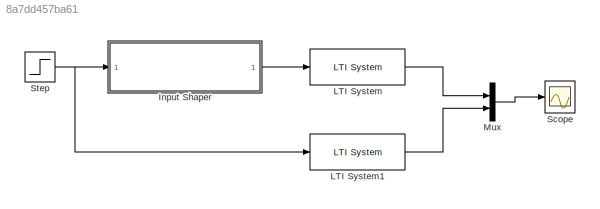
MODEL slx_8a7dd457ba61
KIND model
CONFIG AbsTol = auto
CONFIG EnableMultiTasking = off
CONFIG FixedStep = auto
CONFIG MaxStep = auto
CONFIG MinStep = auto
CONFIG RelTol = 1e-3
CONFIG SampleTimeConstraint = Unconstrained
CONFIG Solver = VariableStepAuto
CONFIG SolverName = VariableStepAuto
CONFIG StartTime = 0.0
CONFIG StopTime = 0.5
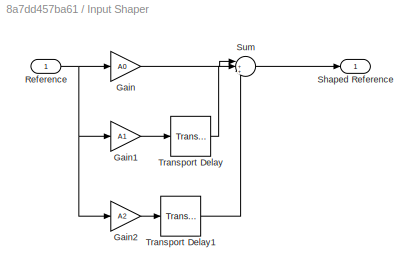
BLOCK [SubSystem] Input Shaper
  Ports = [1, 1]
  RequestExecContextInheritance = off
  Variant = off
BLOCK [Gain] Input Shaper/Gain
  Gain = A0
  OutDataTypeStr = Inherit: Inherit via internal rule
  ParamDataTypeStr = Inherit: Inherit via internal rule
  SaturateOnIntegerOverflow = off
BLOCK [Gain] Input Shaper/Gain1
  Gain = A1
  OutDataTypeStr = Inherit: Inherit via internal rule
  ParamDataTypeStr = Inherit: Inherit via internal rule
  SaturateOnIntegerOverflow = off
BLOCK [Gain] Input Shaper/Gain2
  Gain = A2
  OutDataTypeStr = Inherit: Inherit via internal rule
  ParamDataTypeStr = Inherit: Inherit via internal rule
  SaturateOnIntegerOverflow = off
BLOCK [Inport] Input Shaper/Reference
  IconDisplay = Port number
BLOCK [Outport] Input Shaper/Shaped Reference
  IconDisplay = Port number
BLOCK [Sum] Input Shaper/Sum
  IconShape = round
  InputSameDT = off
  Inputs = |+++
  OutDataTypeStr = Inherit: Inherit via internal rule
  Ports = [3, 1]
  SaturateOnIntegerOverflow = off
BLOCK [TransportDelay] Input Shaper/Transport Delay
  DelayTime = t1
  Ports = [1, 1]
BLOCK [TransportDelay] Input Shaper/Transport Delay1
  DelayTime = t2
  Ports = [1, 1]
BLOCK [Reference] LTI System  REF=cstblocks/LTI System
  Ports = [1, 1]
  SourceBlock = cstblocks/LTI System
  SourceProductBaseCode = CT
  SourceProductName = Control System Toolbox
  SourceType = LTI Block
BLOCK [Reference] LTI System1  REF=cstblocks/LTI System
  Ports = [1, 1]
  SourceBlock = cstblocks/LTI System
  SourceProductBaseCode = CT
  SourceProductName = Control System Toolbox
  SourceType = LTI Block
BLOCK [Mux] Mux
  DisplayOption = bar
  Inputs = 2
  Ports = [2, 1]
BLOCK [Scope] Scope
  NumInputPorts = 1
  Ports = [1]
  ScopeSpecificationString = Simulink.scopes.TimeScopeBlockCfg('CurrentConfiguration', extmgr.ConfigurationSet(extmgr.Configuration('Core','General UI',true),extmgr.Configuration('Core','Source UI',true),extmgr.Configuration('Sources','WiredSimulink',true,'DataLoggingVariableName','ISData','DataLogging',true,'DataLoggingSaveFormat','Array'),extmgr.Configuration('Visuals','Time Domain',true,'SerializedDisplays',{struct('MinYLi...<+1526ch>
BLOCK [Step] Step
  SampleTime = 0
  Time = 0
LINE Input Shaper/Gain1:1 -> Input Shaper/Transport Delay:1
LINE Input Shaper/Gain2:1 -> Input Shaper/Transport Delay1:1
LINE Input Shaper/Gain:1 -> Input Shaper/Sum:1
NET Input Shaper/Reference:1 -> Input Shaper/Gain1:1, Input Shaper/Gain2:1, Input Shaper/Gain:1
LINE Input Shaper/Sum:1 -> Input Shaper/Shaped Reference:1
LINE Input Shaper/Transport Delay1:1 -> Input Shaper/Sum:3
LINE Input Shaper/Transport Delay:1 -> Input Shaper/Sum:2
LINE Input Shaper:1 -> LTI System:1
LINE LTI System1:1 -> Mux:2
LINE LTI System:1 -> Mux:1
LINE Mux:1 -> Scope:1
NET Step:1 -> Input Shaper:1, LTI System1:1
note: NET lines group one-source signal fan-out (src -> all destinations, sorted); 1:1 wires keep LINE
